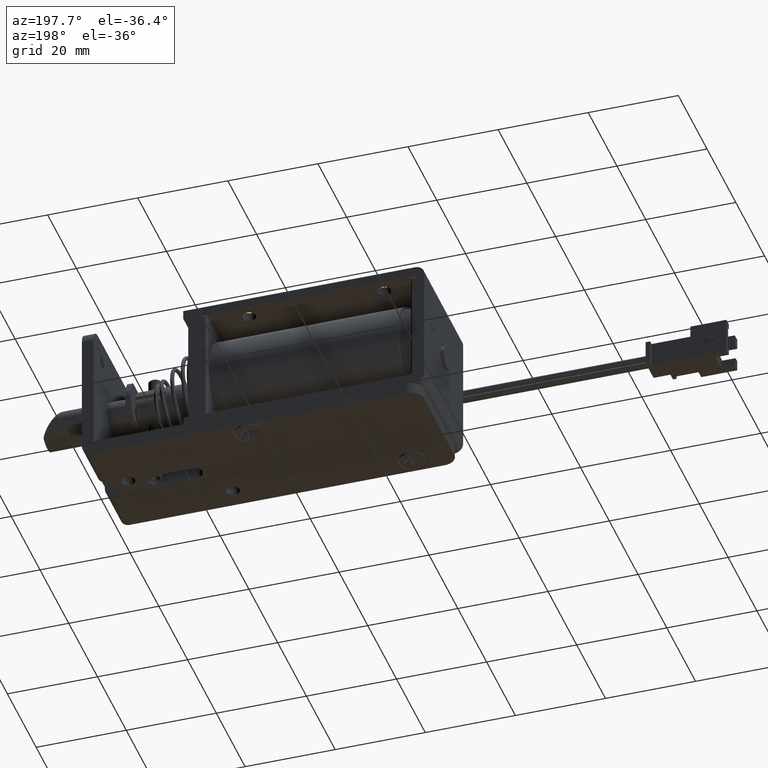
[diagram: clean part render]
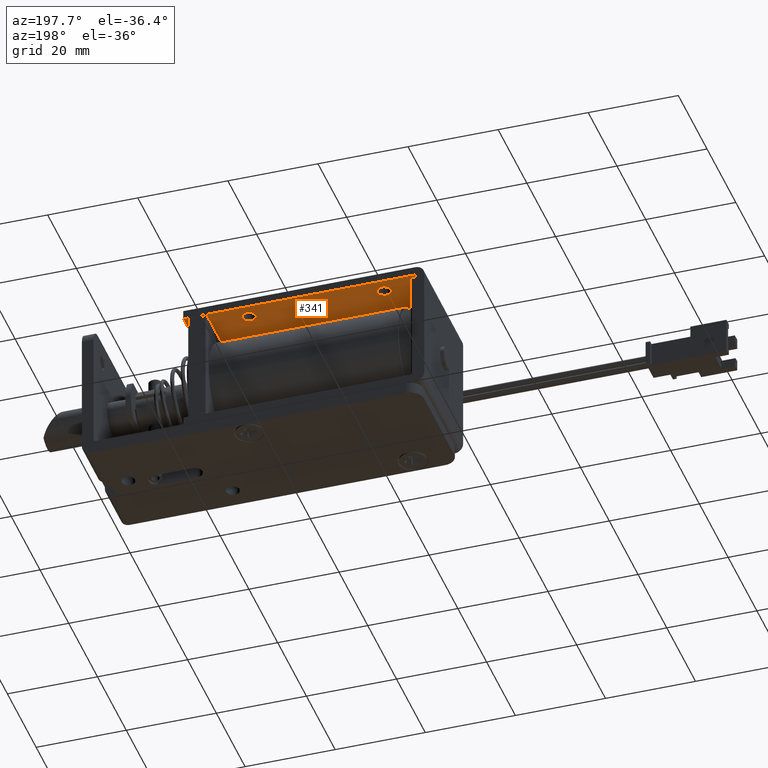
[diagram: same view with one face highlighted and labeled with its STEP entity id]
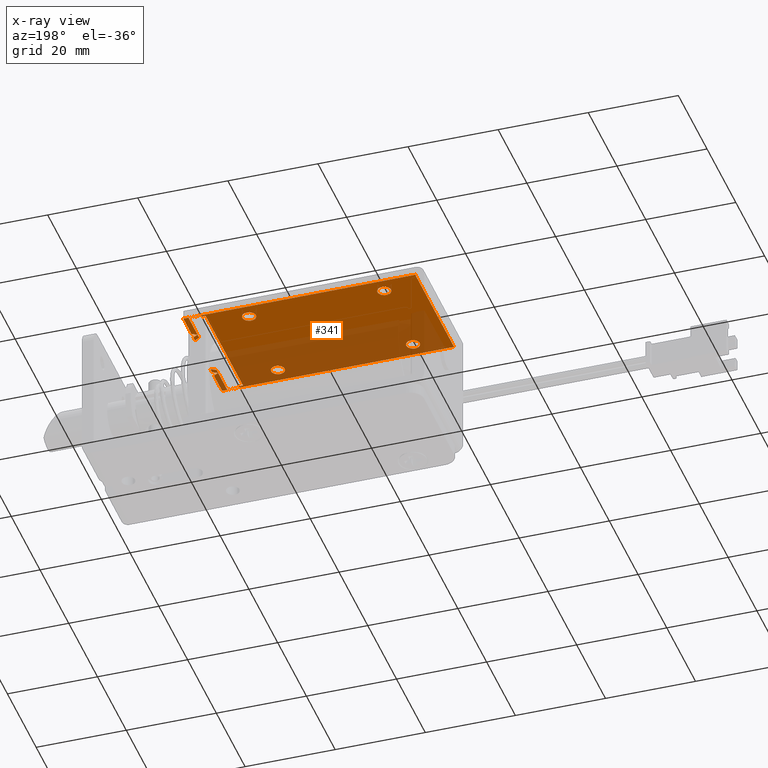
[diagram: x-ray of the same camera — body ghosted, the highlighted face saturated]
A machine part, auxiliary view. The second image highlights one B-rep face of the part: STEP entity #341.
The next image is the same camera in x-ray: the body ghosted, the highlighted face saturated — about 46% of this face is hidden behind the body in this view.
In plain terms, the highlighted planar face has unit normal (0, 0, 1).
Its self-contained STEP definition (entity closure, byte-faithful):
#341=ADVANCED_FACE('',(#2463,#2464,#2465,#2466,#2467),#2462,.F.);
#2462=PLANE('',#5445);
#2463=FACE_OUTER_BOUND('',#5446,.T.);
#2464=FACE_BOUND('',#5447,.T.);
#2465=FACE_BOUND('',#5448,.T.);
#2466=FACE_BOUND('',#5449,.T.);
#2467=FACE_BOUND('',#5450,.T.);
#5442=CARTESIAN_POINT('',(-7.91500000000E+01,-1.62000000000E+01,1.30000000000E+01));
#5443=DIRECTION('',(0.00000000000E+00,0.00000000000E+00,1.00000000000E+00));
#5444=DIRECTION('',(1.00000000000E+00,0.00000000000E+00,0.00000000000E+00));
#5445=AXIS2_PLACEMENT_3D('',#5442,#5443,#5444);
#5446=EDGE_LOOP('',(#8712,#8713,#8714,#8715,#8716,#8717,#8718,#8719,#8720,#8721,#8722,#8723,#8724,#8725,#8726,#8727,#8728,#8729,#8730,#8731,#8732,#8733,#8734,#8735));
#5447=EDGE_LOOP('',(#8736,#8737));
#5448=EDGE_LOOP('',(#8738,#8739));
#5449=EDGE_LOOP('',(#8740,#8741));
#5450=EDGE_LOOP('',(#8742,#8743));
#8712=ORIENTED_EDGE('',*,*,#10356,.T.);
#8713=ORIENTED_EDGE('',*,*,#10357,.T.);
#8714=ORIENTED_EDGE('',*,*,#9868,.F.);
#8715=ORIENTED_EDGE('',*,*,#10358,.F.);
#8716=ORIENTED_EDGE('',*,*,#10295,.F.);
#8717=ORIENTED_EDGE('',*,*,#10359,.F.);
#8718=ORIENTED_EDGE('',*,*,#10360,.F.);
#8719=ORIENTED_EDGE('',*,*,#10361,.F.);
#8720=ORIENTED_EDGE('',*,*,#10362,.F.);
#8721=ORIENTED_EDGE('',*,*,#10363,.T.);
#8722=ORIENTED_EDGE('',*,*,#10364,.T.);
#8723=ORIENTED_EDGE('',*,*,#10365,.F.);
#8724=ORIENTED_EDGE('',*,*,#10366,.F.);
#8725=ORIENTED_EDGE('',*,*,#10367,.F.);
#8726=ORIENTED_EDGE('',*,*,#10368,.F.);
#8727=ORIENTED_EDGE('',*,*,#10369,.F.);
#8728=ORIENTED_EDGE('',*,*,#9871,.F.);
#8729=ORIENTED_EDGE('',*,*,#10370,.T.);
#8730=ORIENTED_EDGE('',*,*,#10371,.T.);
#8731=ORIENTED_EDGE('',*,*,#9887,.F.);
#8732=ORIENTED_EDGE('',*,*,#9853,.T.);
#8733=ORIENTED_EDGE('',*,*,#9838,.T.);
#8734=ORIENTED_EDGE('',*,*,#9840,.T.);
#8735=ORIENTED_EDGE('',*,*,#10372,.F.);
#8736=ORIENTED_EDGE('',*,*,#10373,.T.);
#8737=ORIENTED_EDGE('',*,*,#10374,.T.);
#8738=ORIENTED_EDGE('',*,*,#10375,.T.);
#8739=ORIENTED_EDGE('',*,*,#10376,.T.);
#8740=ORIENTED_EDGE('',*,*,#10377,.T.);
#8741=ORIENTED_EDGE('',*,*,#10378,.T.);
#8742=ORIENTED_EDGE('',*,*,#10379,.T.);
#8743=ORIENTED_EDGE('',*,*,#10380,.T.);
#9838=EDGE_CURVE('',#11483,#11462,#11497,.T.);
#9840=EDGE_CURVE('',#11462,#11503,#11511,.T.);
#9853=EDGE_CURVE('',#11582,#11483,#11595,.T.);
#9868=EDGE_CURVE('',#11687,#11694,#11695,.T.);
#9871=EDGE_CURVE('',#11708,#11715,#11716,.T.);
#9887=EDGE_CURVE('',#11582,#11824,#11825,.T.);
#10295=EDGE_CURVE('',#14559,#14566,#14567,.T.);
#10356=EDGE_CURVE('',#14956,#14957,#14958,.T.);
#10357=EDGE_CURVE('',#14957,#11694,#14964,.T.);
#10358=EDGE_CURVE('',#14566,#11687,#14970,.T.);
#10359=EDGE_CURVE('',#14976,#14559,#14977,.T.);
#10360=EDGE_CURVE('',#14983,#14976,#14984,.T.);
#10361=EDGE_CURVE('',#14990,#14983,#14991,.T.);
#10362=EDGE_CURVE('',#14997,#14990,#14998,.T.);
#10363=EDGE_CURVE('',#14997,#15004,#15005,.T.);
#10364=EDGE_CURVE('',#15004,#15011,#15012,.T.);
#10365=EDGE_CURVE('',#15018,#15011,#15019,.T.);
#10366=EDGE_CURVE('',#15025,#15018,#15026,.T.);
#10367=EDGE_CURVE('',#15032,#15025,#15033,.T.);
#10368=EDGE_CURVE('',#15039,#15032,#15040,.T.);
#10369=EDGE_CURVE('',#11715,#15039,#15046,.T.);
#10370=EDGE_CURVE('',#11708,#15052,#15053,.T.);
#10371=EDGE_CURVE('',#15052,#11824,#15059,.T.);
#10372=EDGE_CURVE('',#14956,#11503,#15065,.T.);
#10373=EDGE_CURVE('',#15071,#15072,#15073,.T.);
#10374=EDGE_CURVE('',#15072,#15071,#15079,.T.);
#10375=EDGE_CURVE('',#15085,#15086,#15087,.T.);
#10376=EDGE_CURVE('',#15086,#15085,#15093,.T.);
#10377=EDGE_CURVE('',#15099,#15100,#15101,.T.);
#10378=EDGE_CURVE('',#15100,#15099,#15107,.T.);
#10379=EDGE_CURVE('',#15113,#15114,#15115,.T.);
#10380=EDGE_CURVE('',#15114,#15113,#15121,.T.);
#11462=VERTEX_POINT('',#17918);
#11483=VERTEX_POINT('',#17933);
#11497=LINE('',#17942,#17943);
#11503=VERTEX_POINT('',#17945);
#11511=LINE('',#17951,#17952);
#11582=VERTEX_POINT('',#17994);
#11595=LINE('',#18002,#18003);
#11687=VERTEX_POINT('',#18057);
#11694=VERTEX_POINT('',#18061);
#11695=LINE('',#18062,#18063);
#11708=VERTEX_POINT('',#18069);
#11715=VERTEX_POINT('',#18073);
#11716=LINE('',#18074,#18075);
#11824=VERTEX_POINT('',#18134);
#11825=LINE('',#18135,#18136);
#14559=VERTEX_POINT('',#19724);
#14566=VERTEX_POINT('',#19728);
#14567=LINE('',#19729,#19730);
#14956=VERTEX_POINT('',#19957);
#14957=VERTEX_POINT('',#19958);
#14958=LINE('',#19959,#19960);
#14964=LINE('',#19962,#19963);
#14970=LINE('',#19965,#19966);
#14976=VERTEX_POINT('',#19968);
#14977=LINE('',#19969,#19970);
#14983=VERTEX_POINT('',#19972);
#14984=LINE('',#19973,#19974);
#14990=VERTEX_POINT('',#19976);
#14991=LINE('',#19977,#19978);
#14997=VERTEX_POINT('',#19980);
#14998=LINE('',#19981,#19982);
#15004=VERTEX_POINT('',#19984);
#15005=LINE('',#19985,#19986);
#15011=VERTEX_POINT('',#19988);
#15012=LINE('',#19989,#19990);
#15018=VERTEX_POINT('',#19992);
#15019=LINE('',#19993,#19994);
#15025=VERTEX_POINT('',#19996);
#15026=LINE('',#19997,#19998);
#15032=VERTEX_POINT('',#20000);
#15033=LINE('',#20001,#20002);
#15039=VERTEX_POINT('',#20004);
#15040=LINE('',#20005,#20006);
#15046=LINE('',#20008,#20009);
#15052=VERTEX_POINT('',#20011);
#15053=LINE('',#20012,#20013);
#15059=LINE('',#20015,#20016);
#15065=LINE('',#20018,#20019);
#15071=VERTEX_POINT('',#20021);
#15072=VERTEX_POINT('',#20022);
#15073=CIRCLE('',#20026,1.50000000000E+00);
#15079=CIRCLE('',#20030,1.50000000000E+00);
#15085=VERTEX_POINT('',#20031);
#15086=VERTEX_POINT('',#20032);
#15087=CIRCLE('',#20036,1.50000000000E+00);
#15093=CIRCLE('',#20040,1.50000000000E+00);
#15099=VERTEX_POINT('',#20041);
#15100=VERTEX_POINT('',#20042);
#15101=CIRCLE('',#20046,1.50000000000E+00);
#15107=CIRCLE('',#20050,1.50000000000E+00);
#15113=VERTEX_POINT('',#20051);
#15114=VERTEX_POINT('',#20052);
#15115=CIRCLE('',#20056,1.50000000000E+00);
#15121=CIRCLE('',#20060,1.50000000000E+00);
#17918=CARTESIAN_POINT('',(-2.73000000000E+01,-1.30000000000E+01,1.30000000000E+01));
#17933=CARTESIAN_POINT('',(-2.73000000000E+01,1.30000000000E+01,1.30000000000E+01));
#17942=CARTESIAN_POINT('',(-2.73000000000E+01,1.30000000000E+01,1.30000000000E+01));
#17943=VECTOR('',#17944,2.60000000000E+01);
#17944=DIRECTION('',(0.00000000000E+00,-1.00000000000E+00,0.00000000000E+00));
#17945=CARTESIAN_POINT('',(-2.65000000000E+01,-1.30000000000E+01,1.30000000000E+01));
#17951=CARTESIAN_POINT('',(-2.73000000000E+01,-1.30000000000E+01,1.30000000000E+01));
#17952=VECTOR('',#17953,8.00000000000E-01);
#17953=DIRECTION('',(1.00000000000E+00,0.00000000000E+00,0.00000000000E+00));
#17994=CARTESIAN_POINT('',(-2.65000000000E+01,1.30000000000E+01,1.30000000000E+01));
#18002=CARTESIAN_POINT('',(-2.65000000000E+01,1.30000000000E+01,1.30000000000E+01));
#18003=VECTOR('',#18004,8.00000000000E-01);
#18004=DIRECTION('',(-1.00000000000E+00,0.00000000000E+00,0.00000000000E+00));
#18057=CARTESIAN_POINT('',(-2.36000000000E+01,-6.00000000000E+00,1.30000000000E+01));
#18061=CARTESIAN_POINT('',(-2.36500000000E+01,-6.00000000000E+00,1.30000000000E+01));
#18062=CARTESIAN_POINT('',(-2.36000000000E+01,-6.00000000000E+00,1.30000000000E+01));
#18063=VECTOR('',#18064,5.00000000000E-02);
#18064=DIRECTION('',(-1.00000000000E+00,0.00000000000E+00,0.00000000000E+00));
#18069=CARTESIAN_POINT('',(-2.36500000000E+01,6.00000000000E+00,1.30000000000E+01));
#18073=CARTESIAN_POINT('',(-2.36000000000E+01,6.00000000000E+00,1.30000000000E+01));
#18074=CARTESIAN_POINT('',(-2.36500000000E+01,6.00000000000E+00,1.30000000000E+01));
#18075=VECTOR('',#18076,5.00000000000E-02);
#18076=DIRECTION('',(1.00000000000E+00,0.00000000000E+00,0.00000000000E+00));
#18134=CARTESIAN_POINT('',(-2.65000000000E+01,1.34500000000E+01,1.30000000000E+01));
#18135=CARTESIAN_POINT('',(-2.65000000000E+01,1.30000000000E+01,1.30000000000E+01));
#18136=VECTOR('',#18137,4.49999999999E-01);
#18137=DIRECTION('',(0.00000000000E+00,1.00000000000E+00,0.00000000000E+00));
#19724=CARTESIAN_POINT('',(-2.25000000000E+01,-6.51961524227E+00,1.30000000000E+01));
#19728=CARTESIAN_POINT('',(-2.25000000000E+01,-5.36491470389E+00,1.30000000000E+01));
#19729=CARTESIAN_POINT('',(-2.25000000000E+01,-6.51961524227E+00,1.30000000000E+01));
#19730=VECTOR('',#19731,1.15470053838E+00);
#19731=DIRECTION('',(0.00000000000E+00,1.00000000000E+00,0.00000000000E+00));
#19957=CARTESIAN_POINT('',(-2.65000000000E+01,-1.34500000000E+01,1.30000000000E+01));
#19958=CARTESIAN_POINT('',(-2.36500000000E+01,-1.34500000000E+01,1.30000000000E+01));
#19959=CARTESIAN_POINT('',(-2.65000000000E+01,-1.34500000000E+01,1.30000000000E+01));
#19960=VECTOR('',#19961,2.85000000000E+00);
#19961=DIRECTION('',(1.00000000000E+00,0.00000000000E+00,0.00000000000E+00));
#19962=CARTESIAN_POINT('',(-2.36500000000E+01,-1.34500000000E+01,1.30000000000E+01));
#19963=VECTOR('',#19964,7.45000000000E+00);
#19964=DIRECTION('',(0.00000000000E+00,1.00000000000E+00,0.00000000000E+00));
#19965=CARTESIAN_POINT('',(-2.25000000000E+01,-5.36491470389E+00,1.30000000000E+01));
#19966=VECTOR('',#19967,1.27017059222E+00);
#19967=DIRECTION('',(-8.66025403784E-01,-5.00000000001E-01,0.00000000000E+00));
#19968=CARTESIAN_POINT('',(-2.36000000000E+01,-7.15470053838E+00,1.30000000000E+01));
#19969=CARTESIAN_POINT('',(-2.36000000000E+01,-7.15470053838E+00,1.30000000000E+01));
#19970=VECTOR('',#19971,1.27017059222E+00);
#19971=DIRECTION('',(8.66025403784E-01,5.00000000000E-01,0.00000000000E+00));
#19972=CARTESIAN_POINT('',(-2.25000000000E+01,-7.78978583449E+00,1.30000000000E+01));
#19973=CARTESIAN_POINT('',(-2.25000000000E+01,-7.78978583449E+00,1.30000000000E+01));
#19974=VECTOR('',#19975,1.27017059222E+00);
#19975=DIRECTION('',(-8.66025403784E-01,5.00000000000E-01,0.00000000000E+00));
#19976=CARTESIAN_POINT('',(-2.25000000000E+01,-1.35000000000E+01,1.30000000000E+01));
#19977=CARTESIAN_POINT('',(-2.25000000000E+01,-1.35000000000E+01,1.30000000000E+01));
#19978=VECTOR('',#19979,5.71021416551E+00);
#19979=DIRECTION('',(0.00000000000E+00,1.00000000000E+00,0.00000000000E+00));
#19980=CARTESIAN_POINT('',(-7.40000000000E+01,-1.35000000000E+01,1.30000000000E+01));
#19981=CARTESIAN_POINT('',(-7.40000000000E+01,-1.35000000000E+01,1.30000000000E+01));
#19982=VECTOR('',#19983,5.15000000000E+01);
#19983=DIRECTION('',(1.00000000000E+00,0.00000000000E+00,0.00000000000E+00));
#19984=CARTESIAN_POINT('',(-7.40000000000E+01,1.35000000000E+01,1.30000000000E+01));
#19985=CARTESIAN_POINT('',(-7.40000000000E+01,-1.35000000000E+01,1.30000000000E+01));
#19986=VECTOR('',#19987,2.70000000000E+01);
#19987=DIRECTION('',(0.00000000000E+00,1.00000000000E+00,0.00000000000E+00));
#19988=CARTESIAN_POINT('',(-2.25000000000E+01,1.35000000000E+01,1.30000000000E+01));
#19989=CARTESIAN_POINT('',(-7.40000000000E+01,1.35000000000E+01,1.30000000000E+01));
#19990=VECTOR('',#19991,5.15000000000E+01);
#19991=DIRECTION('',(1.00000000000E+00,0.00000000000E+00,0.00000000000E+00));
#19992=CARTESIAN_POINT('',(-2.25000000000E+01,7.78978583449E+00,1.30000000000E+01));
#19993=CARTESIAN_POINT('',(-2.25000000000E+01,7.78978583449E+00,1.30000000000E+01));
#19994=VECTOR('',#19995,5.71021416551E+00);
#19995=DIRECTION('',(0.00000000000E+00,1.00000000000E+00,0.00000000000E+00));
#19996=CARTESIAN_POINT('',(-2.36000000000E+01,7.15470053838E+00,1.30000000000E+01));
#19997=CARTESIAN_POINT('',(-2.36000000000E+01,7.15470053838E+00,1.30000000000E+01));
#19998=VECTOR('',#19999,1.27017059222E+00);
#19999=DIRECTION('',(8.66025403784E-01,5.00000000000E-01,0.00000000000E+00));
#20000=CARTESIAN_POINT('',(-2.25000000000E+01,6.51961524227E+00,1.30000000000E+01));
#20001=CARTESIAN_POINT('',(-2.25000000000E+01,6.51961524227E+00,1.30000000000E+01));
#20002=VECTOR('',#20003,1.27017059222E+00);
#20003=DIRECTION('',(-8.66025403784E-01,5.00000000000E-01,0.00000000000E+00));
#20004=CARTESIAN_POINT('',(-2.25000000000E+01,5.36491470389E+00,1.30000000000E+01));
#20005=CARTESIAN_POINT('',(-2.25000000000E+01,5.36491470389E+00,1.30000000000E+01));
#20006=VECTOR('',#20007,1.15470053838E+00);
#20007=DIRECTION('',(0.00000000000E+00,1.00000000000E+00,0.00000000000E+00));
#20008=CARTESIAN_POINT('',(-2.36000000000E+01,6.00000000000E+00,1.30000000000E+01));
#20009=VECTOR('',#20010,1.27017059222E+00);
#20010=DIRECTION('',(8.66025403784E-01,-5.00000000000E-01,0.00000000000E+00));
#20011=CARTESIAN_POINT('',(-2.36500000000E+01,1.34500000000E+01,1.30000000000E+01));
#20012=CARTESIAN_POINT('',(-2.36500000000E+01,6.00000000000E+00,1.30000000000E+01));
#20013=VECTOR('',#20014,7.45000000000E+00);
#20014=DIRECTION('',(0.00000000000E+00,1.00000000000E+00,0.00000000000E+00));
#20015=CARTESIAN_POINT('',(-2.36500000000E+01,1.34500000000E+01,1.30000000000E+01));
#20016=VECTOR('',#20017,2.85000000000E+00);
#20017=DIRECTION('',(-1.00000000000E+00,0.00000000000E+00,0.00000000000E+00));
#20018=CARTESIAN_POINT('',(-2.65000000000E+01,-1.34500000000E+01,1.30000000000E+01));
#20019=VECTOR('',#20020,4.50000000000E-01);
#20020=DIRECTION('',(0.00000000000E+00,1.00000000000E+00,0.00000000000E+00));
#20021=CARTESIAN_POINT('',(-6.75000000000E+01,-1.00000000000E+01,1.30000000000E+01));
#20022=CARTESIAN_POINT('',(-6.45000000000E+01,-1.00000000000E+01,1.30000000000E+01));
#20023=CARTESIAN_POINT('',(-6.60000000000E+01,-1.00000000000E+01,1.30000000000E+01));
#20024=DIRECTION('',(0.00000000000E+00,0.00000000000E+00,1.00000000000E+00));
#20025=DIRECTION('',(-1.00000000000E+00,-1.22460635382E-16,0.00000000000E+00));
#20026=AXIS2_PLACEMENT_3D('',#20023,#20024,#20025);
#20027=CARTESIAN_POINT('',(-6.60000000000E+01,-1.00000000000E+01,1.30000000000E+01));
#20028=DIRECTION('',(0.00000000000E+00,0.00000000000E+00,1.00000000000E+00));
#20029=DIRECTION('',(-1.00000000000E+00,-1.22460635382E-16,0.00000000000E+00));
#20030=AXIS2_PLACEMENT_3D('',#20027,#20028,#20029);
#20031=CARTESIAN_POINT('',(-3.75000000000E+01,-1.00000000000E+01,1.30000000000E+01));
#20032=CARTESIAN_POINT('',(-3.45000000000E+01,-1.00000000000E+01,1.30000000000E+01));
#20033=CARTESIAN_POINT('',(-3.60000000000E+01,-1.00000000000E+01,1.30000000000E+01));
#20034=DIRECTION('',(0.00000000000E+00,0.00000000000E+00,1.00000000000E+00));
#20035=DIRECTION('',(-1.00000000000E+00,-1.22460635382E-16,0.00000000000E+00));
#20036=AXIS2_PLACEMENT_3D('',#20033,#20034,#20035);
#20037=CARTESIAN_POINT('',(-3.60000000000E+01,-1.00000000000E+01,1.30000000000E+01));
#20038=DIRECTION('',(0.00000000000E+00,0.00000000000E+00,1.00000000000E+00));
#20039=DIRECTION('',(-1.00000000000E+00,-1.22460635382E-16,0.00000000000E+00));
#20040=AXIS2_PLACEMENT_3D('',#20037,#20038,#20039);
#20041=CARTESIAN_POINT('',(-3.75000000000E+01,1.00000000000E+01,1.30000000000E+01));
#20042=CARTESIAN_POINT('',(-3.45000000000E+01,1.00000000000E+01,1.30000000000E+01));
#20043=CARTESIAN_POINT('',(-3.60000000000E+01,1.00000000000E+01,1.30000000000E+01));
#20044=DIRECTION('',(0.00000000000E+00,0.00000000000E+00,1.00000000000E+00));
#20045=DIRECTION('',(-1.00000000000E+00,-1.22460635382E-16,0.00000000000E+00));
#20046=AXIS2_PLACEMENT_3D('',#20043,#20044,#20045);
#20047=CARTESIAN_POINT('',(-3.60000000000E+01,1.00000000000E+01,1.30000000000E+01));
#20048=DIRECTION('',(0.00000000000E+00,0.00000000000E+00,1.00000000000E+00));
#20049=DIRECTION('',(-1.00000000000E+00,-1.22460635382E-16,0.00000000000E+00));
#20050=AXIS2_PLACEMENT_3D('',#20047,#20048,#20049);
#20051=CARTESIAN_POINT('',(-6.75000000000E+01,1.00000000000E+01,1.30000000000E+01));
#20052=CARTESIAN_POINT('',(-6.45000000000E+01,1.00000000000E+01,1.30000000000E+01));
#20053=CARTESIAN_POINT('',(-6.60000000000E+01,1.00000000000E+01,1.30000000000E+01));
#20054=DIRECTION('',(0.00000000000E+00,0.00000000000E+00,1.00000000000E+00));
#20055=DIRECTION('',(-1.00000000000E+00,-1.22460635382E-16,0.00000000000E+00));
#20056=AXIS2_PLACEMENT_3D('',#20053,#20054,#20055);
#20057=CARTESIAN_POINT('',(-6.60000000000E+01,1.00000000000E+01,1.30000000000E+01));
#20058=DIRECTION('',(0.00000000000E+00,0.00000000000E+00,1.00000000000E+00));
#20059=DIRECTION('',(-1.00000000000E+00,-1.22460635382E-16,0.00000000000E+00));
#20060=AXIS2_PLACEMENT_3D('',#20057,#20058,#20059);